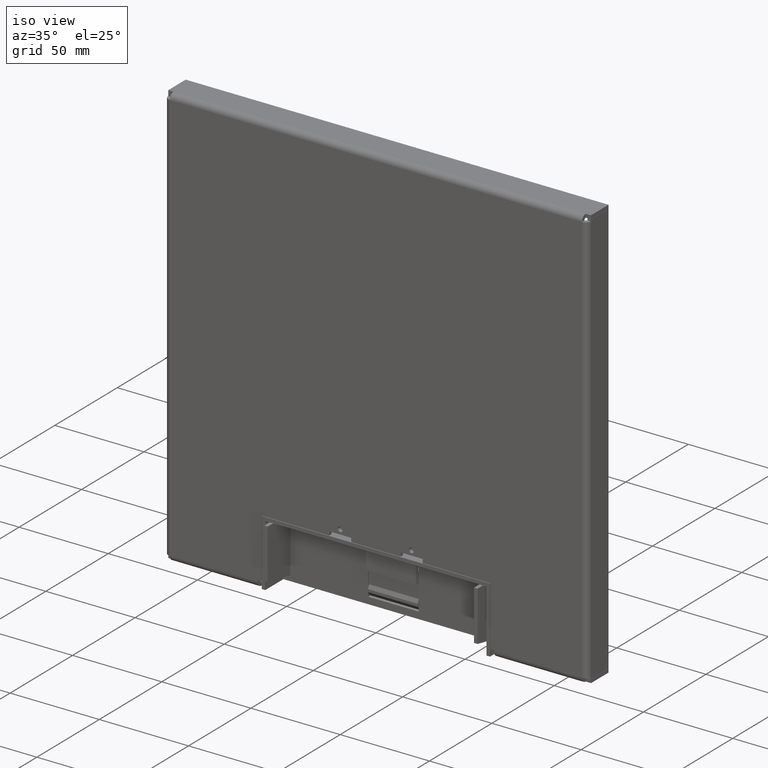
[diagram: clean part render]
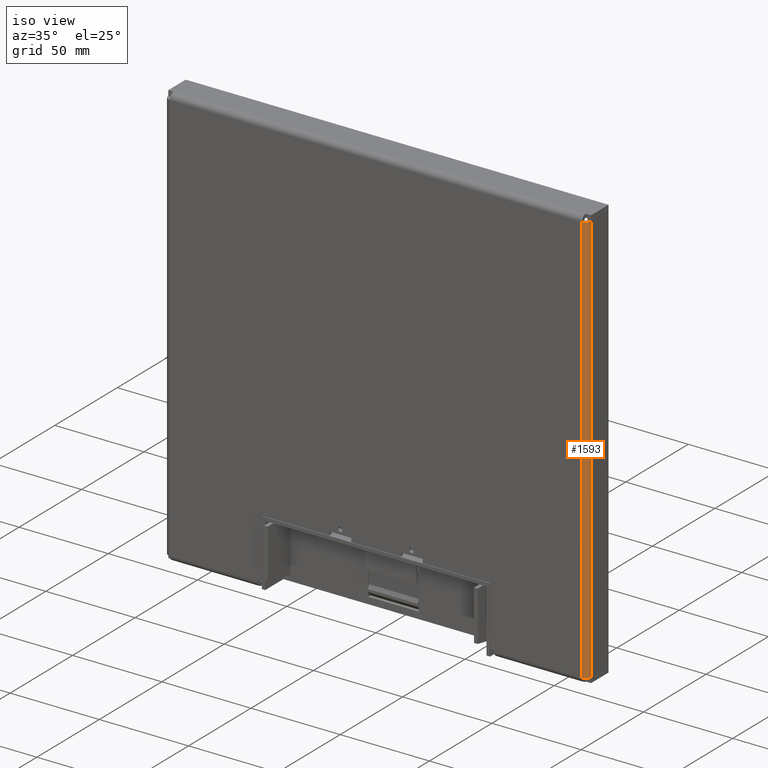
[diagram: same view with one face highlighted and labeled with its STEP entity id]
A machine part, iso view. The second image highlights one B-rep face of the part: STEP entity #1593.
In plain terms, the highlighted cylindrical surface (edge-blend (fillet) strip) has radius 3 mm, axis along (0, 0, -1).
Its self-contained STEP definition (entity closure, byte-faithful):
#523=DIRECTION('',(0.E0,0.E0,1.E0));
#524=VECTOR('',#523,2.31E2);
#525=CARTESIAN_POINT('',(1.185E2,3.E0,-1.155E2));
#526=LINE('',#525,#524);
#527=CARTESIAN_POINT('',(1.155E2,3.E0,-1.155E2));
#528=DIRECTION('',(0.E0,0.E0,-1.E0));
#529=DIRECTION('',(1.E0,0.E0,0.E0));
#530=AXIS2_PLACEMENT_3D('',#527,#528,#529);
#532=DIRECTION('',(0.E0,0.E0,-1.E0));
#533=VECTOR('',#532,2.31E2);
#534=CARTESIAN_POINT('',(1.155E2,0.E0,1.155E2));
#535=LINE('',#534,#533);
#536=CARTESIAN_POINT('',(1.155E2,3.E0,1.155E2));
#537=DIRECTION('',(0.E0,0.E0,-1.E0));
#538=DIRECTION('',(1.E0,0.E0,0.E0));
#539=AXIS2_PLACEMENT_3D('',#536,#537,#538);
#1117=CARTESIAN_POINT('',(1.185E2,3.E0,-1.155E2));
#1118=CARTESIAN_POINT('',(1.155E2,0.E0,-1.155E2));
#1119=VERTEX_POINT('',#1117);
#1120=VERTEX_POINT('',#1118);
#1133=CARTESIAN_POINT('',(1.185E2,3.E0,1.155E2));
#1134=CARTESIAN_POINT('',(1.155E2,0.E0,1.155E2));
#1135=VERTEX_POINT('',#1133);
#1136=VERTEX_POINT('',#1134);
#1580=CARTESIAN_POINT('',(1.155E2,3.E0,-1.155E2));
#1581=DIRECTION('',(0.E0,0.E0,-1.E0));
#1582=DIRECTION('',(1.E0,0.E0,0.E0));
#1583=AXIS2_PLACEMENT_3D('',#1580,#1581,#1582);
#1584=CYLINDRICAL_SURFACE('',#1583,3.E0);
#1586=ORIENTED_EDGE('',*,*,#1585,.F.);
#1587=ORIENTED_EDGE('',*,*,#1570,.T.);
#1588=ORIENTED_EDGE('',*,*,#1342,.F.);
#1590=ORIENTED_EDGE('',*,*,#1589,.F.);
#1591=EDGE_LOOP('',(#1586,#1587,#1588,#1590));
#1592=FACE_OUTER_BOUND('',#1591,.F.);
#531=CIRCLE('',#530,3.E0);
#540=CIRCLE('',#539,3.E0);
#1342=EDGE_CURVE('',#1136,#1120,#535,.T.);
#1570=EDGE_CURVE('',#1119,#1120,#531,.T.);
#1585=EDGE_CURVE('',#1119,#1135,#526,.T.);
#1589=EDGE_CURVE('',#1135,#1136,#540,.T.);
#1593=ADVANCED_FACE('',(#1592),#1584,.T.);